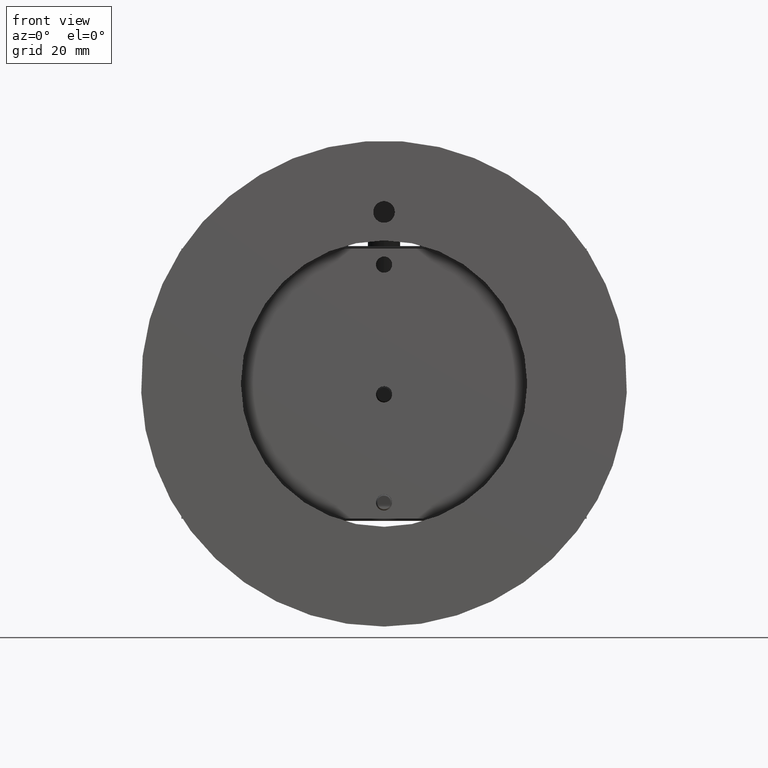
[diagram: clean part render]
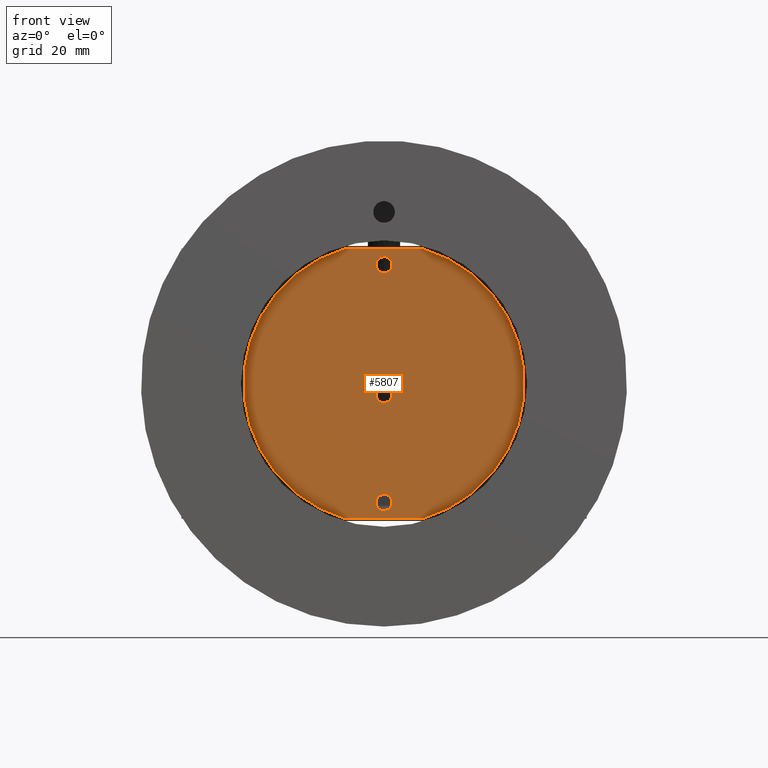
[diagram: same view with one face highlighted and labeled with its STEP entity id]
A machine part, front view. The second image highlights one B-rep face of the part: STEP entity #5807.
In plain terms, the highlighted planar face has unit normal (-0, 1, -0).
Its self-contained STEP definition (entity closure, byte-faithful):
#534=FACE_BOUND('',#1080,.T.);
#535=FACE_BOUND('',#1081,.T.);
#536=FACE_BOUND('',#1082,.T.);
#621=PLANE('',#6188);
#719=FACE_OUTER_BOUND('',#1079,.T.);
#1079=EDGE_LOOP('',(#3901,#3902,#3903,#3904));
#1080=EDGE_LOOP('',(#3905));
#1081=EDGE_LOOP('',(#3906));
#1082=EDGE_LOOP('',(#3907));
#1528=LINE('',#8478,#1861);
#1529=LINE('',#8479,#1862);
#1861=VECTOR('',#6859,0.393700787401575);
#1862=VECTOR('',#6860,0.393700787401575);
#2188=CIRCLE('',#6175,0.0590551181102362);
#2190=CIRCLE('',#6178,0.0590551181102362);
#2192=CIRCLE('',#6181,0.0590551181102362);
#2194=CIRCLE('',#6184,1.02362204724409);
#2196=CIRCLE('',#6187,1.02362204724409);
#2471=VERTEX_POINT('',#8444);
#2473=VERTEX_POINT('',#8450);
#2475=VERTEX_POINT('',#8456);
#2478=VERTEX_POINT('',#8463);
#2479=VERTEX_POINT('',#8465);
#2482=VERTEX_POINT('',#8472);
#2483=VERTEX_POINT('',#8474);
#3020=EDGE_CURVE('',#2471,#2471,#2188,.T.);
#3023=EDGE_CURVE('',#2473,#2473,#2190,.T.);
#3026=EDGE_CURVE('',#2475,#2475,#2192,.T.);
#3029=EDGE_CURVE('',#2479,#2478,#2194,.T.);
#3033=EDGE_CURVE('',#2483,#2482,#2196,.T.);
#3035=EDGE_CURVE('',#2482,#2479,#1528,.T.);
#3036=EDGE_CURVE('',#2478,#2483,#1529,.T.);
#3901=ORIENTED_EDGE('',*,*,#3033,.T.);
#3902=ORIENTED_EDGE('',*,*,#3035,.T.);
#3903=ORIENTED_EDGE('',*,*,#3029,.T.);
#3904=ORIENTED_EDGE('',*,*,#3036,.T.);
#3905=ORIENTED_EDGE('',*,*,#3020,.T.);
#3906=ORIENTED_EDGE('',*,*,#3023,.T.);
#3907=ORIENTED_EDGE('',*,*,#3026,.T.);
#5807=ADVANCED_FACE('',(#719,#534,#535,#536),#621,.F.);
#6175=AXIS2_PLACEMENT_3D('',#8446,#6825,#6826);
#6178=AXIS2_PLACEMENT_3D('',#8452,#6832,#6833);
#6181=AXIS2_PLACEMENT_3D('',#8458,#6839,#6840);
#6184=AXIS2_PLACEMENT_3D('',#8466,#6846,#6847);
#6187=AXIS2_PLACEMENT_3D('',#8475,#6854,#6855);
#6188=AXIS2_PLACEMENT_3D('',#8477,#6857,#6858);
#6825=DIRECTION('center_axis',(0.,1.,0.));
#6826=DIRECTION('ref_axis',(0.,0.,1.));
#6832=DIRECTION('center_axis',(0.,1.,0.));
#6833=DIRECTION('ref_axis',(0.,0.,1.));
#6839=DIRECTION('center_axis',(0.,1.,0.));
#6840=DIRECTION('ref_axis',(0.,0.,1.));
#6846=DIRECTION('center_axis',(0.,-1.,0.));
#6847=DIRECTION('ref_axis',(0.274670324174725,0.,0.961538461538461));
#6854=DIRECTION('center_axis',(0.,-1.,0.));
#6855=DIRECTION('ref_axis',(-0.274670324174725,0.,-0.961538461538461));
#6857=DIRECTION('center_axis',(0.,1.,0.));
#6858=DIRECTION('ref_axis',(1.,0.,0.));
#6859=DIRECTION('',(1.,0.,0.));
#6860=DIRECTION('',(-1.,0.,0.));
#8444=CARTESIAN_POINT('',(-7.23216613669697E-18,0.933070866141732,0.807086614173227));
#8446=CARTESIAN_POINT('Origin',(0.,0.933070866141732,0.866141732283463));
#8450=CARTESIAN_POINT('',(-1.8207043773121E-16,0.933070866141732,-0.925196850393701));
#8452=CARTESIAN_POINT('Origin',(-1.74838271594513E-16,0.933070866141732,
-0.866141732283465));
#8456=CARTESIAN_POINT('',(-1.8207043773121E-16,0.933070866141732,-0.137795275590552));
#8458=CARTESIAN_POINT('Origin',(-1.74838271594513E-16,0.933070866141732,
-0.0787401574803157));
#8463=CARTESIAN_POINT('',(0.281158599548931,0.933070866141732,0.984251968503936));
#8465=CARTESIAN_POINT('',(0.281158599548932,0.933070866141732,-0.984251968503938));
#8466=CARTESIAN_POINT('Origin',(0.,0.933070866141732,-8.74922898857897E-16));
#8472=CARTESIAN_POINT('',(-0.281158599548931,0.933070866141732,-0.984251968503938));
#8474=CARTESIAN_POINT('',(-0.281158599548931,0.933070866141732,0.984251968503936));
#8475=CARTESIAN_POINT('Origin',(0.,0.933070866141732,-8.74922898857897E-16));
#8477=CARTESIAN_POINT('Origin',(0.,0.933070866141732,-8.74922898857897E-16));
#8478=CARTESIAN_POINT('',(-0.281158599548932,0.933070866141732,-0.984251968503938));
#8479=CARTESIAN_POINT('',(-0.281158599548932,0.933070866141732,0.984251968503936));